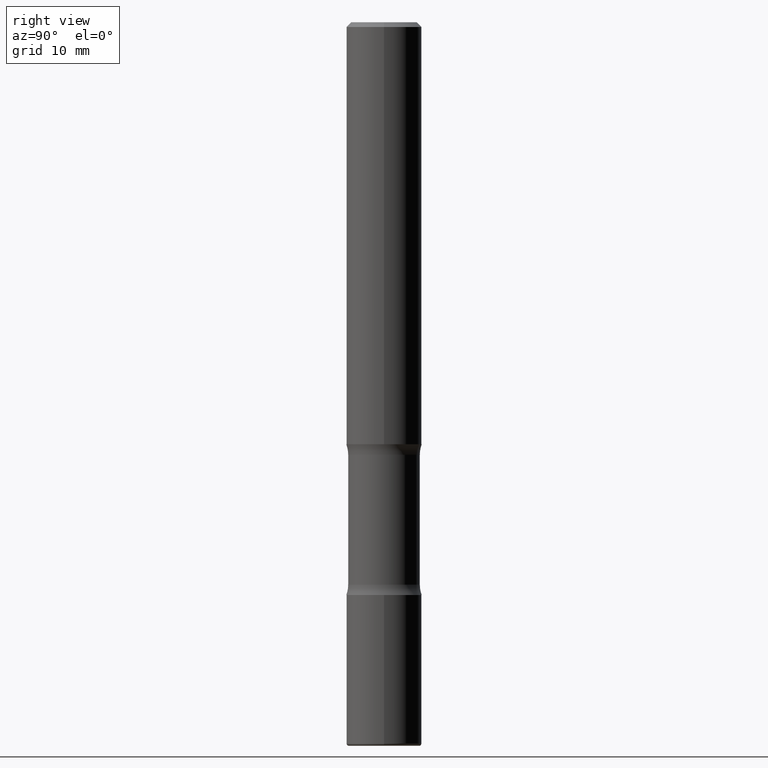
[diagram: clean part render]
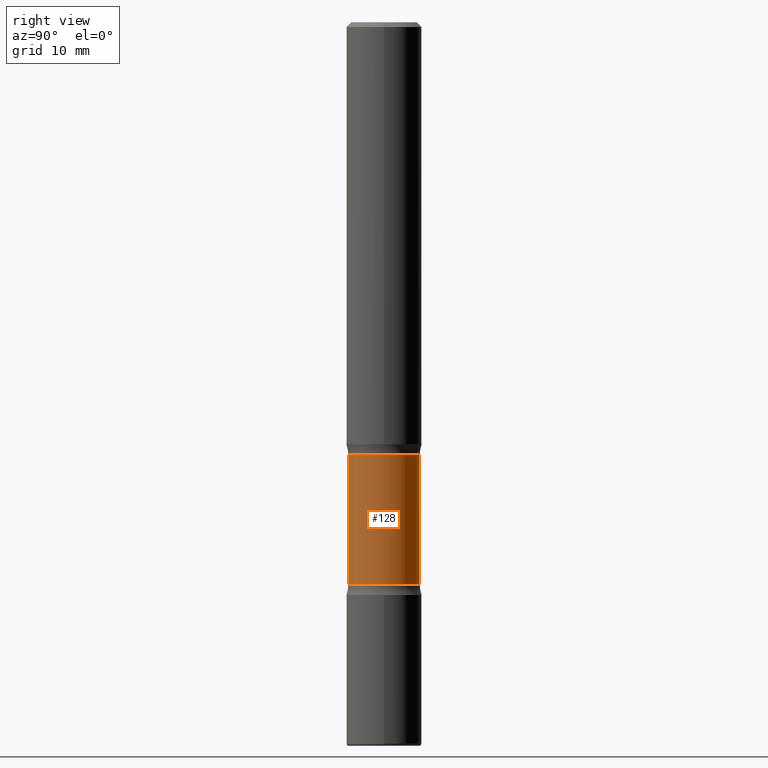
[diagram: same view with one face highlighted and labeled with its STEP entity id]
A machine part, right view. The second image highlights one B-rep face of the part: STEP entity #128.
In plain terms, the highlighted cylindrical surface (edge-blend (fillet) strip) has radius 3.7703 mm, axis along (0, -0, -1).
Its self-contained STEP definition (entity closure, byte-faithful):
#12 = VERTEX_POINT ( 'NONE', #418 ) ;
#20 = VERTEX_POINT ( 'NONE', #406 ) ;
#37 = AXIS2_PLACEMENT_3D ( 'NONE', #267, #442, #52 ) ;
#50 = CIRCLE ( 'NONE', #122, 0.1484375000000000278 ) ;
#52 = DIRECTION ( 'NONE',  ( 6.982962677686265133E-15, 1.000000000000000000, -3.680805717779217644E-15 ) ) ;
#55 = CARTESIAN_POINT ( 'NONE',  ( 7.385442397868472267E-29, -1.040422170319851125E-14, -2.999999999999999556 ) ) ;
#60 = LINE ( 'NONE', #235, #396 ) ;
#61 = VERTEX_POINT ( 'NONE', #345 ) ;
#111 = VERTEX_POINT ( 'NONE', #361 ) ;
#112 = DIRECTION ( 'NONE',  ( 6.982962677686265133E-15, 1.000000000000000000, -3.680805717779216855E-15 ) ) ;
#122 = AXIS2_PLACEMENT_3D ( 'NONE', #500, #486, #112 ) ;
#128 = ADVANCED_FACE ( 'NONE', ( #317 ), #461, .T. ) ;
#144 = ORIENTED_EDGE ( 'NONE', *, *, #173, .T. ) ;
#161 = DIRECTION ( 'NONE',  ( 2.523926373086038410E-29, -3.379125637513666367E-15, -1.000000000000000000 ) ) ;
#173 = EDGE_CURVE ( 'NONE', #20, #12, #50, .T. ) ;
#176 = AXIS2_PLACEMENT_3D ( 'NONE', #55, #407, #186 ) ;
#186 = DIRECTION ( 'NONE',  ( 6.982962677686266711E-15, 1.000000000000000000, -3.680805717779217644E-15 ) ) ;
#225 = CIRCLE ( 'NONE', #37, 0.1484375000000000000 ) ;
#235 = CARTESIAN_POINT ( 'NONE',  ( 1.036533522469128973E-15, 0.1484374999999896194, -3.000000000000000444 ) ) ;
#250 = EDGE_CURVE ( 'NONE', #12, #111, #307, .T. ) ;
#264 = EDGE_CURVE ( 'NONE', #61, #111, #225, .T. ) ;
#267 = CARTESIAN_POINT ( 'NONE',  ( 5.698202263795362163E-29, -8.145282435205020267E-15, -2.331501840915390478 ) ) ;
#307 = LINE ( 'NONE', #544, #473 ) ;
#316 = ORIENTED_EDGE ( 'NONE', *, *, #250, .T. ) ;
#317 = FACE_OUTER_BOUND ( 'NONE', #527, .T. ) ;
#345 = CARTESIAN_POINT ( 'NONE',  ( 1.036533522469112013E-15, 0.1484374999999918399, -2.331501840915391366 ) ) ;
#361 = CARTESIAN_POINT ( 'NONE',  ( -1.045153991847949569E-15, -0.1484375000000081601, -2.331501840915390034 ) ) ;
#370 = ORIENTED_EDGE ( 'NONE', *, *, #264, .F. ) ;
#396 = VECTOR ( 'NONE', #400, 39.37007874015748143 ) ;
#400 = DIRECTION ( 'NONE',  ( 2.523926373086038410E-29, -3.379125637513666367E-15, -1.000000000000000000 ) ) ;
#406 = CARTESIAN_POINT ( 'NONE',  ( 1.036533522469098602E-15, 0.1484374999999936995, -1.793498159084610633 ) ) ;
#407 = DIRECTION ( 'NONE',  ( 2.523926373086038410E-29, -3.379125637513666367E-15, -1.000000000000000000 ) ) ;
#418 = CARTESIAN_POINT ( 'NONE',  ( -1.045153991847964360E-15, -0.1484375000000063560, -1.793498159084609522 ) ) ;
#442 = DIRECTION ( 'NONE',  ( 2.523926373086038410E-29, -3.379125637513666367E-15, -1.000000000000000000 ) ) ;
#443 = ORIENTED_EDGE ( 'NONE', *, *, #478, .F. ) ;
#461 = CYLINDRICAL_SURFACE ( 'NONE', #176, 0.1484375000000000000 ) ;
#473 = VECTOR ( 'NONE', #161, 39.37007874015748143 ) ;
#478 = EDGE_CURVE ( 'NONE', #20, #61, #60, .T. ) ;
#486 = DIRECTION ( 'NONE',  ( 2.523926373086038410E-29, -3.379125637513666367E-15, -1.000000000000000000 ) ) ;
#500 = CARTESIAN_POINT ( 'NONE',  ( 4.340320582405264943E-29, -6.327300400853882778E-15, -1.793498159084609966 ) ) ;
#527 = EDGE_LOOP ( 'NONE', ( #144, #316, #370, #443 ) ) ;
#544 = CARTESIAN_POINT ( 'NONE',  ( -1.018355171544137761E-15, -0.1484375000000104083, -2.999999999999999112 ) ) ;